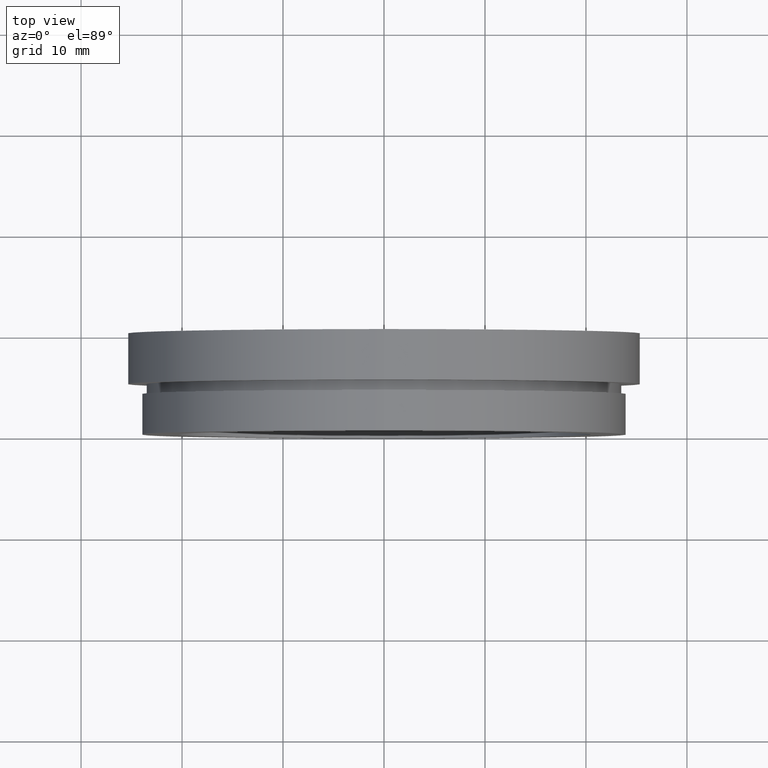
[diagram: clean part render]
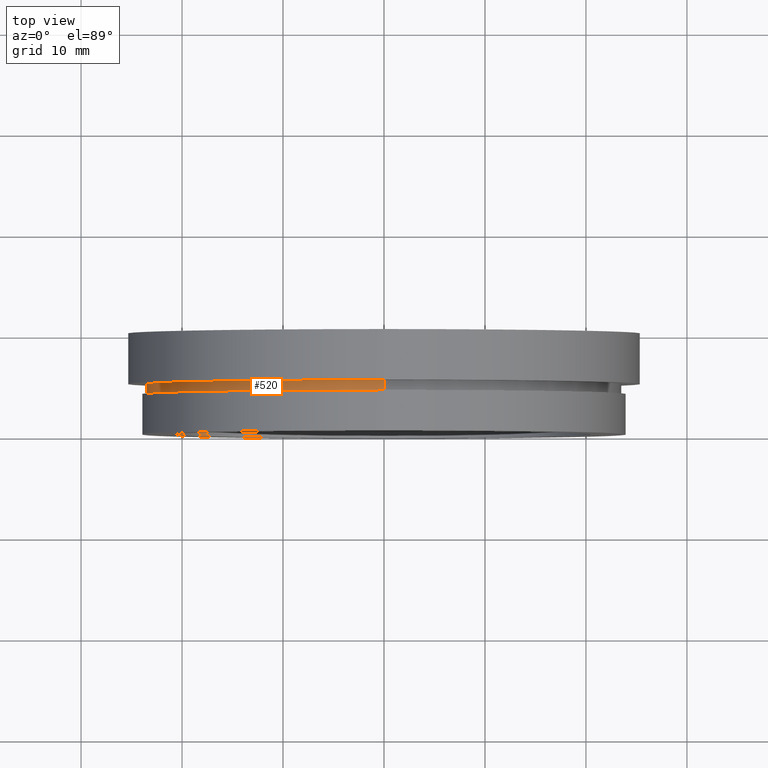
[diagram: same view with one face highlighted and labeled with its STEP entity id]
A machine part, top view. The second image highlights one B-rep face of the part: STEP entity #520.
In plain terms, the highlighted cylindrical surface (partial cylindrical patch) has radius 23.5 mm, axis along (-0, 1, -0).
Its self-contained STEP definition (entity closure, byte-faithful):
#10 = FACE_OUTER_BOUND ( 'NONE', #341, .T. ) ;
#12 = ORIENTED_EDGE ( 'NONE', *, *, #468, .T. ) ;
#18 = DIRECTION ( 'NONE',  ( -0.0000000000000000000, 1.000000000000000000, -0.0000000000000000000 ) ) ;
#19 = CARTESIAN_POINT ( 'NONE',  ( 0.0000000000000000000, 5.000000000000000900, 0.0000000000000000000 ) ) ;
#28 = DIRECTION ( 'NONE',  ( -0.0000000000000000000, 1.000000000000000000, -0.0000000000000000000 ) ) ;
#34 = CARTESIAN_POINT ( 'NONE',  ( 0.0000000000000000000, 13.74468085106383300, 23.50000000000000000 ) ) ;
#69 = EDGE_CURVE ( 'NONE', #401, #182, #624, .T. ) ;
#82 = CARTESIAN_POINT ( 'NONE',  ( 2.877919977996280300E-015, 4.000000000000000000, -23.50000000000000000 ) ) ;
#86 = AXIS2_PLACEMENT_3D ( 'NONE', #216, #188, #573 ) ;
#112 = DIRECTION ( 'NONE',  ( -0.0000000000000000000, 1.000000000000000000, -0.0000000000000000000 ) ) ;
#115 = VERTEX_POINT ( 'NONE', #567 ) ;
#166 = ORIENTED_EDGE ( 'NONE', *, *, #259, .F. ) ;
#175 = EDGE_CURVE ( 'NONE', #401, #376, #524, .T. ) ;
#178 = CYLINDRICAL_SURFACE ( 'NONE', #86, 23.50000000000000000 ) ;
#182 = VERTEX_POINT ( 'NONE', #445 ) ;
#188 = DIRECTION ( 'NONE',  ( -0.0000000000000000000, 1.000000000000000000, -0.0000000000000000000 ) ) ;
#189 = CARTESIAN_POINT ( 'NONE',  ( 2.877919977996280300E-015, 5.000000000000000900, -23.50000000000000000 ) ) ;
#208 = CARTESIAN_POINT ( 'NONE',  ( 0.0000000000000000000, 4.000000000000000000, 0.0000000000000000000 ) ) ;
#210 = AXIS2_PLACEMENT_3D ( 'NONE', #208, #112, #283 ) ;
#216 = CARTESIAN_POINT ( 'NONE',  ( 0.0000000000000000000, 13.74468085106383300, 0.0000000000000000000 ) ) ;
#243 = LINE ( 'NONE', #34, #313 ) ;
#259 = EDGE_CURVE ( 'NONE', #376, #115, #477, .T. ) ;
#283 = DIRECTION ( 'NONE',  ( 0.0000000000000000000, 0.0000000000000000000, 1.000000000000000000 ) ) ;
#313 = VECTOR ( 'NONE', #375, 1000.000000000000000 ) ;
#325 = DIRECTION ( 'NONE',  ( 0.0000000000000000000, 0.0000000000000000000, 1.000000000000000000 ) ) ;
#331 = CARTESIAN_POINT ( 'NONE',  ( 2.877919977996280300E-015, 13.74468085106383300, -23.50000000000000000 ) ) ;
#341 = EDGE_LOOP ( 'NONE', ( #621, #606, #12, #166 ) ) ;
#375 = DIRECTION ( 'NONE',  ( -0.0000000000000000000, 1.000000000000000000, -0.0000000000000000000 ) ) ;
#376 = VERTEX_POINT ( 'NONE', #189 ) ;
#401 = VERTEX_POINT ( 'NONE', #82 ) ;
#445 = CARTESIAN_POINT ( 'NONE',  ( 0.0000000000000000000, 4.000000000000000000, 23.50000000000000000 ) ) ;
#468 = EDGE_CURVE ( 'NONE', #182, #115, #243, .T. ) ;
#477 = CIRCLE ( 'NONE', #583, 23.50000000000000000 ) ;
#496 = VECTOR ( 'NONE', #28, 1000.000000000000000 ) ;
#520 = ADVANCED_FACE ( 'NONE', ( #10 ), #178, .T. ) ;
#524 = LINE ( 'NONE', #331, #496 ) ;
#567 = CARTESIAN_POINT ( 'NONE',  ( 0.0000000000000000000, 5.000000000000000900, 23.50000000000000000 ) ) ;
#573 = DIRECTION ( 'NONE',  ( 0.0000000000000000000, 0.0000000000000000000, 1.000000000000000000 ) ) ;
#583 = AXIS2_PLACEMENT_3D ( 'NONE', #19, #18, #325 ) ;
#606 = ORIENTED_EDGE ( 'NONE', *, *, #69, .T. ) ;
#621 = ORIENTED_EDGE ( 'NONE', *, *, #175, .F. ) ;
#624 = CIRCLE ( 'NONE', #210, 23.50000000000000000 ) ;